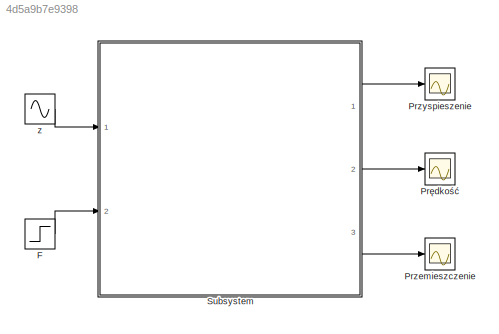
MODEL slx_4d5a9b7e9398
KIND model
CONFIG AbsTol = auto
CONFIG FixedStep = 0.001
CONFIG MaxStep = auto
CONFIG MinStep = auto
CONFIG RelTol = 1e-3
CONFIG SampleTimeConstraint = Unconstrained
CONFIG Solver = ode45
CONFIG SolverMode = Auto
CONFIG SolverName = ode45
CONFIG StartTime = 0.0
CONFIG StopTime = 50
BLOCK [Step] F
  SampleTime = 0
  Time = 0
BLOCK [Scope] Przemieszczenie
  Floating = off
  NumInputPorts = 1
  Ports = [1]
  SaveName = ScopeData1
BLOCK [Scope] Przyspieszenie
  Floating = off
  NumInputPorts = 1
  Ports = [1]
BLOCK [Scope] Prędkość
  Floating = off
  NumInputPorts = 1
  Ports = [1]
  SaveName = ScopeData2
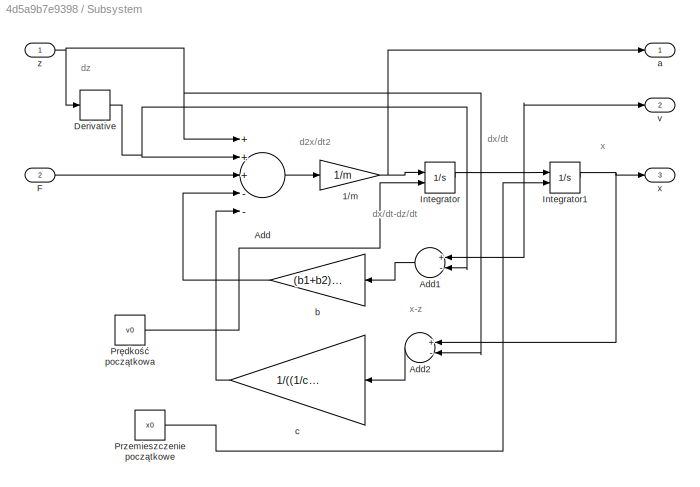
BLOCK [SubSystem] Subsystem
  Ports = [2, 3]
  RequestExecContextInheritance = off
BLOCK [Gain] Subsystem/1//m
  Gain = 1/m
  OutDataTypeStr = Inherit: Inherit via internal rule
  ParamDataTypeStr = Inherit: Inherit via internal rule
  SaturateOnIntegerOverflow = off
BLOCK [Sum] Subsystem/Add
  InputSameDT = off
  Inputs = +++--
  OutDataTypeStr = Inherit: Inherit via internal rule
  Ports = [5, 1]
  SaturateOnIntegerOverflow = off
BLOCK [Sum] Subsystem/Add1
  InputSameDT = off
  Inputs = +-
  OutDataTypeStr = Inherit: Inherit via internal rule
  Ports = [2, 1]
  SaturateOnIntegerOverflow = off
BLOCK [Sum] Subsystem/Add2
  InputSameDT = off
  Inputs = +-
  OutDataTypeStr = Inherit: Inherit via internal rule
  Ports = [2, 1]
  SaturateOnIntegerOverflow = off
BLOCK [Derivative] Subsystem/Derivative
BLOCK [Inport] Subsystem/F
  IconDisplay = Port number
  Port = 2
BLOCK [Integrator] Subsystem/Integrator
  InitialConditionSource = external
  Ports = [2, 1]
BLOCK [Integrator] Subsystem/Integrator1
  InitialConditionSource = external
  Ports = [2, 1]
BLOCK [Constant] Subsystem/Przemieszczenie początkowe
  Value = x0
BLOCK [Constant] Subsystem/Prędkość początkowa
  Value = v0
BLOCK [Outport] Subsystem/a
  IconDisplay = Port number
BLOCK [Gain] Subsystem/b
  Gain = (b1+b2)/2
  OutDataTypeStr = Inherit: Inherit via internal rule
  ParamDataTypeStr = Inherit: Inherit via internal rule
  SaturateOnIntegerOverflow = off
BLOCK [Gain] Subsystem/c
  Gain = 1/((1/c1)+(1/c2))
  OutDataTypeStr = Inherit: Inherit via internal rule
  ParamDataTypeStr = Inherit: Inherit via internal rule
  SaturateOnIntegerOverflow = off
BLOCK [Outport] Subsystem/v
  IconDisplay = Port number
  Port = 2
BLOCK [Outport] Subsystem/x
  IconDisplay = Port number
  Port = 3
BLOCK [Inport] Subsystem/z
  IconDisplay = Port number
BLOCK [Sin] z
  Amplitude = 0
  Frequency = 0
  Ports = [0, 1]
  SampleTime = 0
ANNOTATION Subsystem: d2x/dt2
ANNOTATION Subsystem: dx/dt
ANNOTATION Subsystem: dx/dt-dz/dt
ANNOTATION Subsystem: dz
ANNOTATION Subsystem: x
ANNOTATION Subsystem: x-z
LINE F:1 -> Subsystem:2
NET Subsystem/1//m:1 -> Subsystem/Integrator:1, Subsystem/a:1
LINE Subsystem/Add1:1 -> Subsystem/b:1
LINE Subsystem/Add2:1 -> Subsystem/c:1
LINE Subsystem/Add:1 -> Subsystem/1//m:1
NET Subsystem/Derivative:1 -> Subsystem/Add1:2, Subsystem/Add:2
LINE Subsystem/F:1 -> Subsystem/Add:3
NET Subsystem/Integrator1:1 -> Subsystem/Add2:1, Subsystem/x:1
NET Subsystem/Integrator:1 -> Subsystem/Add1:1, Subsystem/Integrator1:1, Subsystem/v:1
LINE Subsystem/Przemieszczenie początkowe:1 -> Subsystem/Integrator1:2
LINE Subsystem/Prędkość początkowa:1 -> Subsystem/Integrator:2
LINE Subsystem/b:1 -> Subsystem/Add:4
LINE Subsystem/c:1 -> Subsystem/Add:5
NET Subsystem/z:1 -> Subsystem/Add2:2, Subsystem/Add:1, Subsystem/Derivative:1
LINE Subsystem:1 -> Przyspieszenie:1
LINE Subsystem:2 -> Prędkość:1
LINE Subsystem:3 -> Przemieszczenie:1
LINE z:1 -> Subsystem:1
note: NET lines group one-source signal fan-out (src -> all destinations, sorted); 1:1 wires keep LINE
